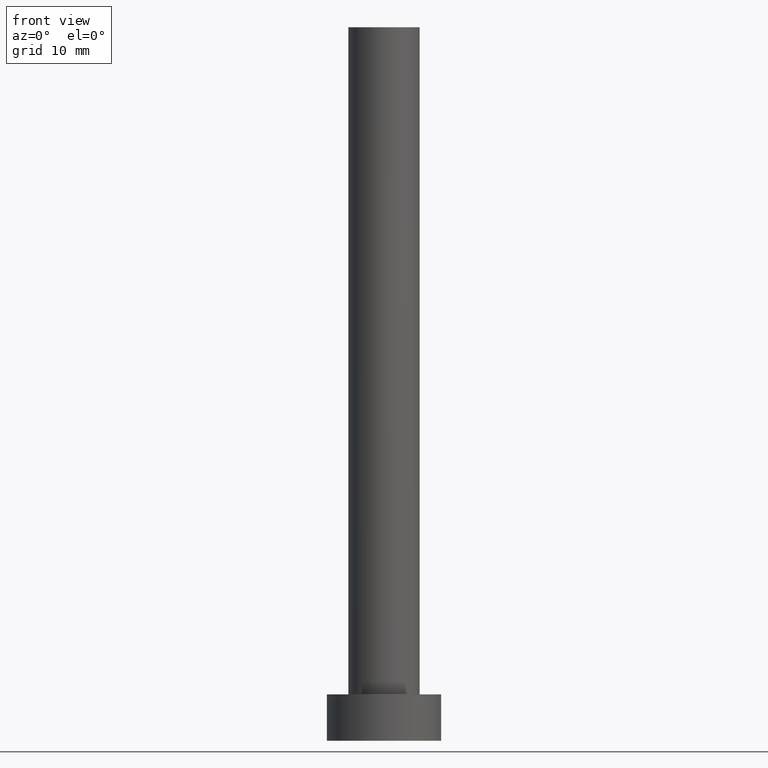
[diagram: clean part render]
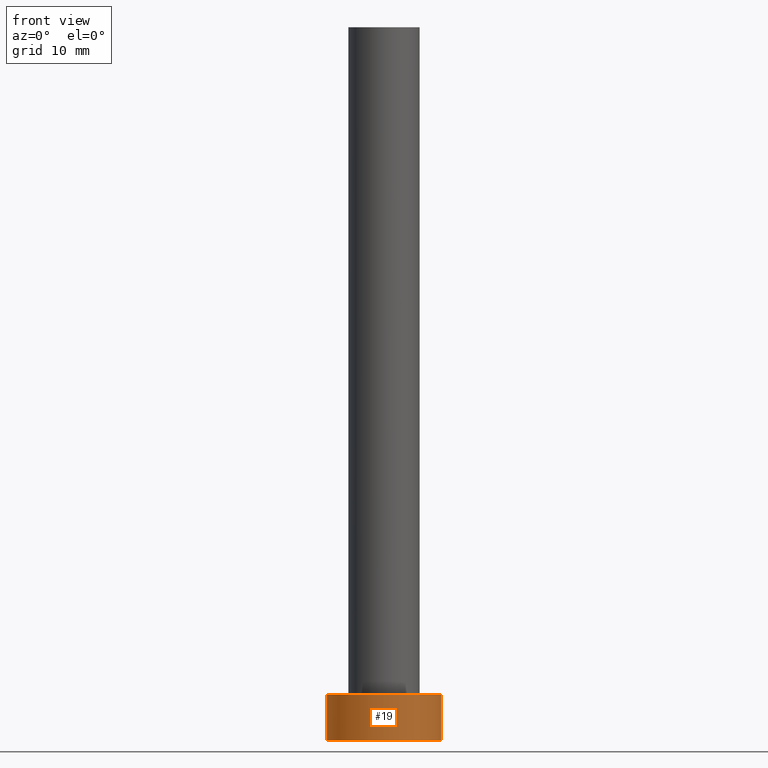
[diagram: same view with one face highlighted and labeled with its STEP entity id]
A machine part, front view. The second image highlights one B-rep face of the part: STEP entity #19.
In plain terms, the highlighted cylindrical surface (partial cylindrical patch) has radius 8 mm, axis along (-0, -0, -1).
Its self-contained STEP definition (entity closure, byte-faithful):
#3 = ORIENTED_EDGE ( 'NONE', *, *, #57, .T. ) ;
#7 = CARTESIAN_POINT ( 'NONE',  ( 0.000000000000000000, 0.000000000000000000, 0.000000000000000000 ) ) ;
#18 = DIRECTION ( 'NONE',  ( 1.000000000000000000, 0.000000000000000000, 0.000000000000000000 ) ) ;
#19 = ADVANCED_FACE ( 'NONE', ( #133 ), #136, .T. ) ;
#29 = VECTOR ( 'NONE', #99, 1000.000000000000000 ) ;
#36 = DIRECTION ( 'NONE',  ( -0.000000000000000000, -0.000000000000000000, -1.000000000000000000 ) ) ;
#40 = VERTEX_POINT ( 'NONE', #187 ) ;
#46 = CARTESIAN_POINT ( 'NONE',  ( -8.000000000000000000, 0.000000000000000000, 6.500000000000000000 ) ) ;
#57 = EDGE_CURVE ( 'NONE', #67, #178, #237, .T. ) ;
#60 = ORIENTED_EDGE ( 'NONE', *, *, #78, .F. ) ;
#61 = CARTESIAN_POINT ( 'NONE',  ( 8.000000000000000000, 9.797174393178823685E-16, 6.500000000000000000 ) ) ;
#67 = VERTEX_POINT ( 'NONE', #118 ) ;
#73 = AXIS2_PLACEMENT_3D ( 'NONE', #145, #207, #18 ) ;
#78 = EDGE_CURVE ( 'NONE', #67, #40, #182, .T. ) ;
#80 = ORIENTED_EDGE ( 'NONE', *, *, #124, .F. ) ;
#86 = DIRECTION ( 'NONE',  ( 1.000000000000000000, 0.000000000000000000, 0.000000000000000000 ) ) ;
#89 = DIRECTION ( 'NONE',  ( -1.000000000000000000, 0.000000000000000000, 0.000000000000000000 ) ) ;
#99 = DIRECTION ( 'NONE',  ( -0.000000000000000000, -0.000000000000000000, -1.000000000000000000 ) ) ;
#118 = CARTESIAN_POINT ( 'NONE',  ( -8.000000000000000000, 0.000000000000000000, 6.500000000000000000 ) ) ;
#124 = EDGE_CURVE ( 'NONE', #40, #168, #231, .T. ) ;
#133 = FACE_OUTER_BOUND ( 'NONE', #215, .T. ) ;
#136 = CYLINDRICAL_SURFACE ( 'NONE', #241, 8.000000000000000000 ) ;
#140 = DIRECTION ( 'NONE',  ( -0.000000000000000000, -0.000000000000000000, -1.000000000000000000 ) ) ;
#145 = CARTESIAN_POINT ( 'NONE',  ( 0.000000000000000000, 0.000000000000000000, 6.500000000000000000 ) ) ;
#147 = VECTOR ( 'NONE', #140, 1000.000000000000000 ) ;
#168 = VERTEX_POINT ( 'NONE', #185 ) ;
#169 = CARTESIAN_POINT ( 'NONE',  ( -8.000000000000000000, 0.000000000000000000, 0.000000000000000000 ) ) ;
#177 = CIRCLE ( 'NONE', #242, 8.000000000000000000 ) ;
#178 = VERTEX_POINT ( 'NONE', #169 ) ;
#180 = EDGE_CURVE ( 'NONE', #178, #168, #177, .T. ) ;
#182 = CIRCLE ( 'NONE', #73, 8.000000000000000000 ) ;
#185 = CARTESIAN_POINT ( 'NONE',  ( 8.000000000000000000, 9.797174393178823685E-16, 0.000000000000000000 ) ) ;
#187 = CARTESIAN_POINT ( 'NONE',  ( 8.000000000000000000, 9.797174393178823685E-16, 6.500000000000000000 ) ) ;
#195 = DIRECTION ( 'NONE',  ( 0.000000000000000000, 0.000000000000000000, 1.000000000000000000 ) ) ;
#200 = CARTESIAN_POINT ( 'NONE',  ( 0.000000000000000000, 0.000000000000000000, 6.500000000000000000 ) ) ;
#207 = DIRECTION ( 'NONE',  ( 0.000000000000000000, 0.000000000000000000, 1.000000000000000000 ) ) ;
#214 = ORIENTED_EDGE ( 'NONE', *, *, #180, .T. ) ;
#215 = EDGE_LOOP ( 'NONE', ( #80, #60, #3, #214 ) ) ;
#231 = LINE ( 'NONE', #61, #147 ) ;
#237 = LINE ( 'NONE', #46, #29 ) ;
#241 = AXIS2_PLACEMENT_3D ( 'NONE', #200, #36, #89 ) ;
#242 = AXIS2_PLACEMENT_3D ( 'NONE', #7, #195, #86 ) ;